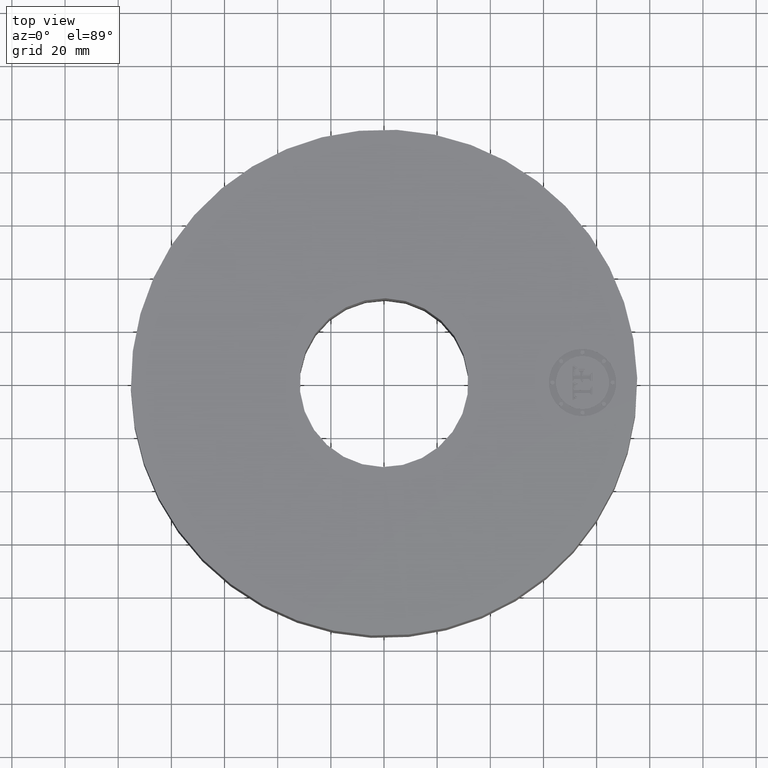
[diagram: clean part render]
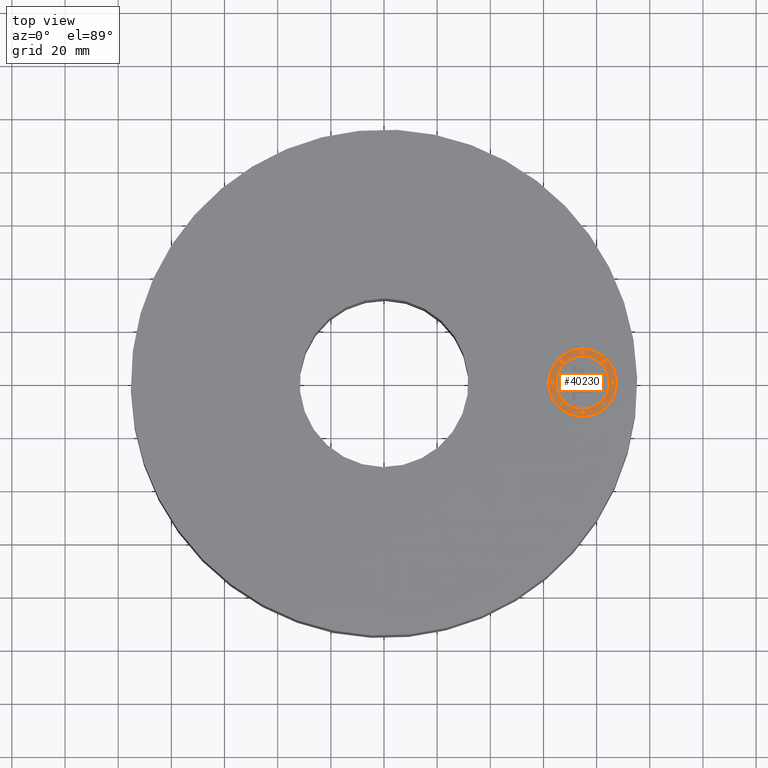
[diagram: same view with one face highlighted and labeled with its STEP entity id]
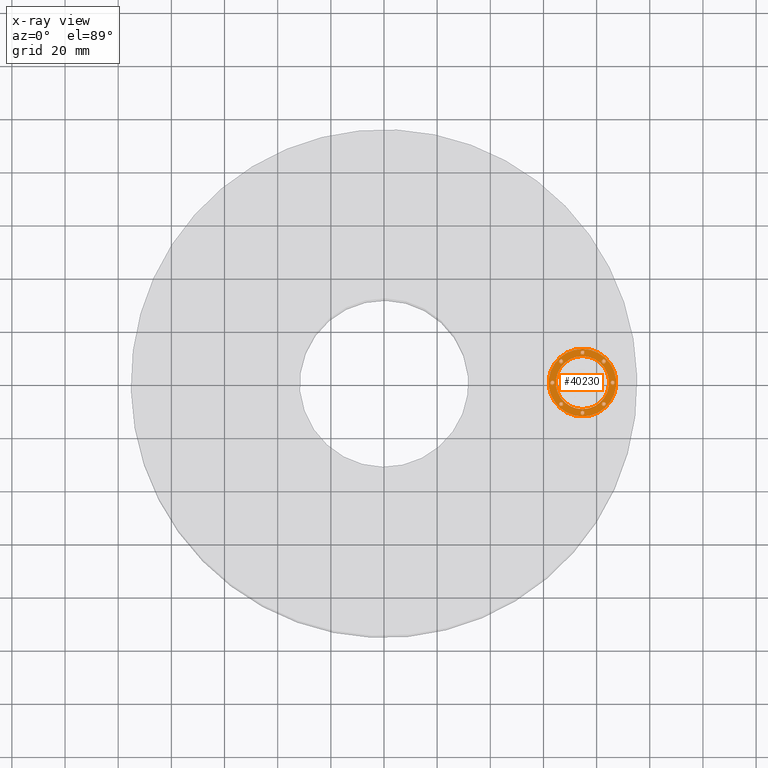
[diagram: x-ray of the same camera — body ghosted, the highlighted face saturated]
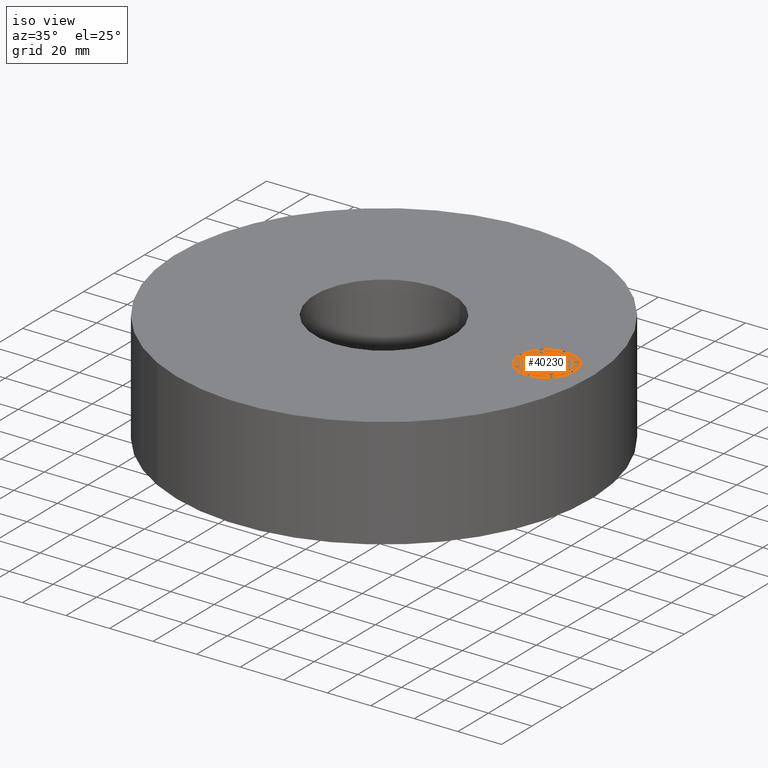
[diagram: same view with one face highlighted and labeled with its STEP entity id]
A machine part, top view. The second image highlights one B-rep face of the part: STEP entity #40230.
The next image is the same camera in x-ray: the body ghosted, the highlighted face saturated — about 0% of this face is hidden behind the body in this view.
A second angle (iso view) of the same face is appended — the face is thin or edge-on in the first view.
In plain terms, the highlighted planar face has unit normal (0, 0, 1).
Its self-contained STEP definition (entity closure, byte-faithful):
#28877=AXIS2_PLACEMENT_3D('Plane Axis2P3D',#28874,#28875,#28876) ;
#40028=AXIS2_PLACEMENT_3D('Circle Axis2P3D',#40026,#40027,$) ;
#40047=AXIS2_PLACEMENT_3D('Circle Axis2P3D',#40045,#40046,$) ;
#40070=AXIS2_PLACEMENT_3D('Circle Axis2P3D',#40068,#40069,$) ;
#40079=AXIS2_PLACEMENT_3D('Circle Axis2P3D',#40077,#40078,$) ;
#40088=AXIS2_PLACEMENT_3D('Circle Axis2P3D',#40086,#40087,$) ;
#40097=AXIS2_PLACEMENT_3D('Circle Axis2P3D',#40095,#40096,$) ;
#40106=AXIS2_PLACEMENT_3D('Circle Axis2P3D',#40104,#40105,$) ;
#40115=AXIS2_PLACEMENT_3D('Circle Axis2P3D',#40113,#40114,$) ;
#40124=AXIS2_PLACEMENT_3D('Circle Axis2P3D',#40122,#40123,$) ;
#40133=AXIS2_PLACEMENT_3D('Circle Axis2P3D',#40131,#40132,$) ;
#40142=AXIS2_PLACEMENT_3D('Circle Axis2P3D',#40140,#40141,$) ;
#40151=AXIS2_PLACEMENT_3D('Circle Axis2P3D',#40149,#40150,$) ;
#40160=AXIS2_PLACEMENT_3D('Circle Axis2P3D',#40158,#40159,$) ;
#40169=AXIS2_PLACEMENT_3D('Circle Axis2P3D',#40167,#40168,$) ;
#40178=AXIS2_PLACEMENT_3D('Circle Axis2P3D',#40176,#40177,$) ;
#40187=AXIS2_PLACEMENT_3D('Circle Axis2P3D',#40185,#40186,$) ;
#40196=AXIS2_PLACEMENT_3D('Circle Axis2P3D',#40194,#40195,$) ;
#40205=AXIS2_PLACEMENT_3D('Circle Axis2P3D',#40203,#40204,$) ;
#40214=AXIS2_PLACEMENT_3D('Circle Axis2P3D',#40212,#40213,$) ;
#40223=AXIS2_PLACEMENT_3D('Circle Axis2P3D',#40221,#40222,$) ;
#28874=CARTESIAN_POINT('Axis2P3D Location',(0.,0.,1.98500000001)) ;
#40016=CARTESIAN_POINT('Vertex',(2.94000000001,0.499999995002,1.98500000001)) ;
#40023=CARTESIAN_POINT('Vertex',(2.94000000001,-0.499999995002,1.98500000001)) ;
#40026=CARTESIAN_POINT('Axis2P3D Location',(2.94000000001,0.,1.98500000001)) ;
#40045=CARTESIAN_POINT('Axis2P3D Location',(2.94000000001,0.,1.98500000001)) ;
#40068=CARTESIAN_POINT('Axis2P3D Location',(2.94000000001,0.,1.98500000001)) ;
#40072=CARTESIAN_POINT('Vertex',(2.94000000001,-0.393939390002,1.98500000001)) ;
#40074=CARTESIAN_POINT('Vertex',(2.94000000001,0.393939390002,1.98500000001)) ;
#40077=CARTESIAN_POINT('Axis2P3D Location',(2.94000000001,0.,1.98500000001)) ;
#40086=CARTESIAN_POINT('Axis2P3D Location',(2.49303030751,-1.27155105343E-015,1.98500000001)) ;
#40090=CARTESIAN_POINT('Vertex',(2.49303030751,-0.0303030300001,1.98500000001)) ;
#40092=CARTESIAN_POINT('Vertex',(2.49303030751,0.0303030300001,1.98500000001)) ;
#40095=CARTESIAN_POINT('Axis2P3D Location',(2.49303030751,-1.27155105343E-015,1.98500000001)) ;
#40104=CARTESIAN_POINT('Axis2P3D Location',(2.94000000001,0.446969692502,1.98500000001)) ;
#40108=CARTESIAN_POINT('Vertex',(2.94000000001,0.416666662502,1.98500000001)) ;
#40110=CARTESIAN_POINT('Vertex',(2.94000000001,0.477272722502,1.98500000001)) ;
#40113=CARTESIAN_POINT('Axis2P3D Location',(2.94000000001,0.446969692502,1.98500000001)) ;
#40122=CARTESIAN_POINT('Axis2P3D Location',(2.62394469946,0.316055300553,1.98500000001)) ;
#40126=CARTESIAN_POINT('Vertex',(2.62394469946,0.285752270553,1.98500000001)) ;
#40128=CARTESIAN_POINT('Vertex',(2.62394469946,0.346358330553,1.98500000001)) ;
#40131=CARTESIAN_POINT('Axis2P3D Location',(2.62394469946,0.316055300553,1.98500000001)) ;
#40140=CARTESIAN_POINT('Axis2P3D Location',(3.38696969251,1.17265263816E-014,1.98500000001)) ;
#40144=CARTESIAN_POINT('Vertex',(3.38696969251,-0.0303030300001,1.98500000001)) ;
#40146=CARTESIAN_POINT('Vertex',(3.38696969251,0.0303030300001,1.98500000001)) ;
#40149=CARTESIAN_POINT('Axis2P3D Location',(3.38696969251,1.17265263816E-014,1.98500000001)) ;
#40158=CARTESIAN_POINT('Axis2P3D Location',(3.25605530056,0.316055300553,1.98500000001)) ;
#40162=CARTESIAN_POINT('Vertex',(3.25605530056,0.285752270553,1.98500000001)) ;
#40164=CARTESIAN_POINT('Vertex',(3.25605530056,0.346358330553,1.98500000001)) ;
#40167=CARTESIAN_POINT('Axis2P3D Location',(3.25605530056,0.316055300553,1.98500000001)) ;
#40176=CARTESIAN_POINT('Axis2P3D Location',(2.94000000001,-0.446969692502,1.98500000001)) ;
#40180=CARTESIAN_POINT('Vertex',(2.94000000001,-0.416666662502,1.98500000001)) ;
#40182=CARTESIAN_POINT('Vertex',(2.94000000001,-0.477272722502,1.98500000001)) ;
#40185=CARTESIAN_POINT('Axis2P3D Location',(2.94000000001,-0.446969692502,1.98500000001)) ;
#40194=CARTESIAN_POINT('Axis2P3D Location',(2.62394469946,-0.316055300553,1.98500000001)) ;
#40198=CARTESIAN_POINT('Vertex',(2.62394469946,-0.285752270553,1.98500000001)) ;
#40200=CARTESIAN_POINT('Vertex',(2.62394469946,-0.346358330553,1.98500000001)) ;
#40203=CARTESIAN_POINT('Axis2P3D Location',(2.62394469946,-0.316055300553,1.98500000001)) ;
#40212=CARTESIAN_POINT('Axis2P3D Location',(3.25605530056,-0.316055300553,1.98500000001)) ;
#40216=CARTESIAN_POINT('Vertex',(3.25605530056,-0.285752270553,1.98500000001)) ;
#40218=CARTESIAN_POINT('Vertex',(3.25605530056,-0.346358330553,1.98500000001)) ;
#40221=CARTESIAN_POINT('Axis2P3D Location',(3.25605530056,-0.316055300553,1.98500000001)) ;
#28875=DIRECTION('Axis2P3D Direction',(0.,0.,0.0393700787402)) ;
#28876=DIRECTION('Axis2P3D XDirection',(0.0393700787402,0.,0.)) ;
#40027=DIRECTION('Axis2P3D Direction',(0.,0.,0.0393700787402)) ;
#40046=DIRECTION('Axis2P3D Direction',(0.,0.,0.0393700787402)) ;
#40069=DIRECTION('Axis2P3D Direction',(0.,0.,0.0393700787402)) ;
#40078=DIRECTION('Axis2P3D Direction',(0.,0.,0.0393700787402)) ;
#40087=DIRECTION('Axis2P3D Direction',(0.,0.,0.0393700787402)) ;
#40096=DIRECTION('Axis2P3D Direction',(0.,0.,0.0393700787402)) ;
#40105=DIRECTION('Axis2P3D Direction',(0.,0.,0.0393700787402)) ;
#40114=DIRECTION('Axis2P3D Direction',(0.,0.,0.0393700787402)) ;
#40123=DIRECTION('Axis2P3D Direction',(0.,0.,0.0393700787402)) ;
#40132=DIRECTION('Axis2P3D Direction',(0.,0.,0.0393700787402)) ;
#40141=DIRECTION('Axis2P3D Direction',(0.,0.,0.0393700787402)) ;
#40150=DIRECTION('Axis2P3D Direction',(0.,0.,0.0393700787402)) ;
#40159=DIRECTION('Axis2P3D Direction',(0.,0.,0.0393700787402)) ;
#40168=DIRECTION('Axis2P3D Direction',(0.,0.,0.0393700787402)) ;
#40177=DIRECTION('Axis2P3D Direction',(0.,0.,0.0393700787402)) ;
#40186=DIRECTION('Axis2P3D Direction',(0.,0.,0.0393700787402)) ;
#40195=DIRECTION('Axis2P3D Direction',(0.,0.,0.0393700787402)) ;
#40204=DIRECTION('Axis2P3D Direction',(0.,0.,0.0393700787402)) ;
#40213=DIRECTION('Axis2P3D Direction',(0.,0.,0.0393700787402)) ;
#40222=DIRECTION('Axis2P3D Direction',(0.,0.,0.0393700787402)) ;
#40065=ORIENTED_EDGE('',*,*,#40030,.T.) ;
#40066=ORIENTED_EDGE('',*,*,#40049,.T.) ;
#40083=ORIENTED_EDGE('',*,*,#40076,.F.) ;
#40084=ORIENTED_EDGE('',*,*,#40081,.F.) ;
#40101=ORIENTED_EDGE('',*,*,#40094,.F.) ;
#40102=ORIENTED_EDGE('',*,*,#40099,.F.) ;
#40119=ORIENTED_EDGE('',*,*,#40112,.F.) ;
#40120=ORIENTED_EDGE('',*,*,#40117,.F.) ;
#40137=ORIENTED_EDGE('',*,*,#40130,.F.) ;
#40138=ORIENTED_EDGE('',*,*,#40135,.F.) ;
#40155=ORIENTED_EDGE('',*,*,#40148,.F.) ;
#40156=ORIENTED_EDGE('',*,*,#40153,.F.) ;
#40173=ORIENTED_EDGE('',*,*,#40166,.F.) ;
#40174=ORIENTED_EDGE('',*,*,#40171,.F.) ;
#40191=ORIENTED_EDGE('',*,*,#40184,.F.) ;
#40192=ORIENTED_EDGE('',*,*,#40189,.F.) ;
#40209=ORIENTED_EDGE('',*,*,#40202,.F.) ;
#40210=ORIENTED_EDGE('',*,*,#40207,.F.) ;
#40227=ORIENTED_EDGE('',*,*,#40220,.F.) ;
#40228=ORIENTED_EDGE('',*,*,#40225,.F.) ;
#40085=FACE_BOUND('',#40082,.T.) ;
#40103=FACE_BOUND('',#40100,.T.) ;
#40121=FACE_BOUND('',#40118,.T.) ;
#40139=FACE_BOUND('',#40136,.T.) ;
#40157=FACE_BOUND('',#40154,.T.) ;
#40175=FACE_BOUND('',#40172,.T.) ;
#40193=FACE_BOUND('',#40190,.T.) ;
#40211=FACE_BOUND('',#40208,.T.) ;
#40229=FACE_BOUND('',#40226,.T.) ;
#40230=ADVANCED_FACE('PartBody',(#40067,#40085,#40103,#40121,#40139,#40157,#40175,#40193,#40211,#40229),#28878,.T.) ;
#40029=CIRCLE('generated circle',#40028,0.499999995002) ;
#40048=CIRCLE('generated circle',#40047,0.499999995002) ;
#40071=CIRCLE('generated circle',#40070,0.393939390002) ;
#40080=CIRCLE('generated circle',#40079,0.393939390002) ;
#40089=CIRCLE('generated circle',#40088,0.0303030300001) ;
#40098=CIRCLE('generated circle',#40097,0.0303030300001) ;
#40107=CIRCLE('generated circle',#40106,0.0303030300001) ;
#40116=CIRCLE('generated circle',#40115,0.0303030300001) ;
#40125=CIRCLE('generated circle',#40124,0.0303030300001) ;
#40134=CIRCLE('generated circle',#40133,0.0303030300001) ;
#40143=CIRCLE('generated circle',#40142,0.0303030300001) ;
#40152=CIRCLE('generated circle',#40151,0.0303030300001) ;
#40161=CIRCLE('generated circle',#40160,0.0303030300001) ;
#40170=CIRCLE('generated circle',#40169,0.0303030300001) ;
#40179=CIRCLE('generated circle',#40178,0.0303030300001) ;
#40188=CIRCLE('generated circle',#40187,0.0303030300001) ;
#40197=CIRCLE('generated circle',#40196,0.0303030300001) ;
#40206=CIRCLE('generated circle',#40205,0.0303030300001) ;
#40215=CIRCLE('generated circle',#40214,0.0303030300001) ;
#40224=CIRCLE('generated circle',#40223,0.0303030300001) ;
#40030=EDGE_CURVE('',#40017,#40024,#40029,.T.) ;
#40049=EDGE_CURVE('',#40024,#40017,#40048,.T.) ;
#40076=EDGE_CURVE('',#40073,#40075,#40071,.T.) ;
#40081=EDGE_CURVE('',#40075,#40073,#40080,.T.) ;
#40094=EDGE_CURVE('',#40091,#40093,#40089,.T.) ;
#40099=EDGE_CURVE('',#40093,#40091,#40098,.T.) ;
#40112=EDGE_CURVE('',#40109,#40111,#40107,.T.) ;
#40117=EDGE_CURVE('',#40111,#40109,#40116,.T.) ;
#40130=EDGE_CURVE('',#40127,#40129,#40125,.T.) ;
#40135=EDGE_CURVE('',#40129,#40127,#40134,.T.) ;
#40148=EDGE_CURVE('',#40145,#40147,#40143,.T.) ;
#40153=EDGE_CURVE('',#40147,#40145,#40152,.T.) ;
#40166=EDGE_CURVE('',#40163,#40165,#40161,.T.) ;
#40171=EDGE_CURVE('',#40165,#40163,#40170,.T.) ;
#40184=EDGE_CURVE('',#40181,#40183,#40179,.T.) ;
#40189=EDGE_CURVE('',#40183,#40181,#40188,.T.) ;
#40202=EDGE_CURVE('',#40199,#40201,#40197,.T.) ;
#40207=EDGE_CURVE('',#40201,#40199,#40206,.T.) ;
#40220=EDGE_CURVE('',#40217,#40219,#40215,.T.) ;
#40225=EDGE_CURVE('',#40219,#40217,#40224,.T.) ;
#40064=EDGE_LOOP('',(#40065,#40066)) ;
#40082=EDGE_LOOP('',(#40083,#40084)) ;
#40100=EDGE_LOOP('',(#40101,#40102)) ;
#40118=EDGE_LOOP('',(#40119,#40120)) ;
#40136=EDGE_LOOP('',(#40137,#40138)) ;
#40154=EDGE_LOOP('',(#40155,#40156)) ;
#40172=EDGE_LOOP('',(#40173,#40174)) ;
#40190=EDGE_LOOP('',(#40191,#40192)) ;
#40208=EDGE_LOOP('',(#40209,#40210)) ;
#40226=EDGE_LOOP('',(#40227,#40228)) ;
#40067=FACE_OUTER_BOUND('',#40064,.T.) ;
#28878=PLANE('',#28877) ;
#40017=VERTEX_POINT('',#40016) ;
#40024=VERTEX_POINT('',#40023) ;
#40073=VERTEX_POINT('',#40072) ;
#40075=VERTEX_POINT('',#40074) ;
#40091=VERTEX_POINT('',#40090) ;
#40093=VERTEX_POINT('',#40092) ;
#40109=VERTEX_POINT('',#40108) ;
#40111=VERTEX_POINT('',#40110) ;
#40127=VERTEX_POINT('',#40126) ;
#40129=VERTEX_POINT('',#40128) ;
#40145=VERTEX_POINT('',#40144) ;
#40147=VERTEX_POINT('',#40146) ;
#40163=VERTEX_POINT('',#40162) ;
#40165=VERTEX_POINT('',#40164) ;
#40181=VERTEX_POINT('',#40180) ;
#40183=VERTEX_POINT('',#40182) ;
#40199=VERTEX_POINT('',#40198) ;
#40201=VERTEX_POINT('',#40200) ;
#40217=VERTEX_POINT('',#40216) ;
#40219=VERTEX_POINT('',#40218) ;